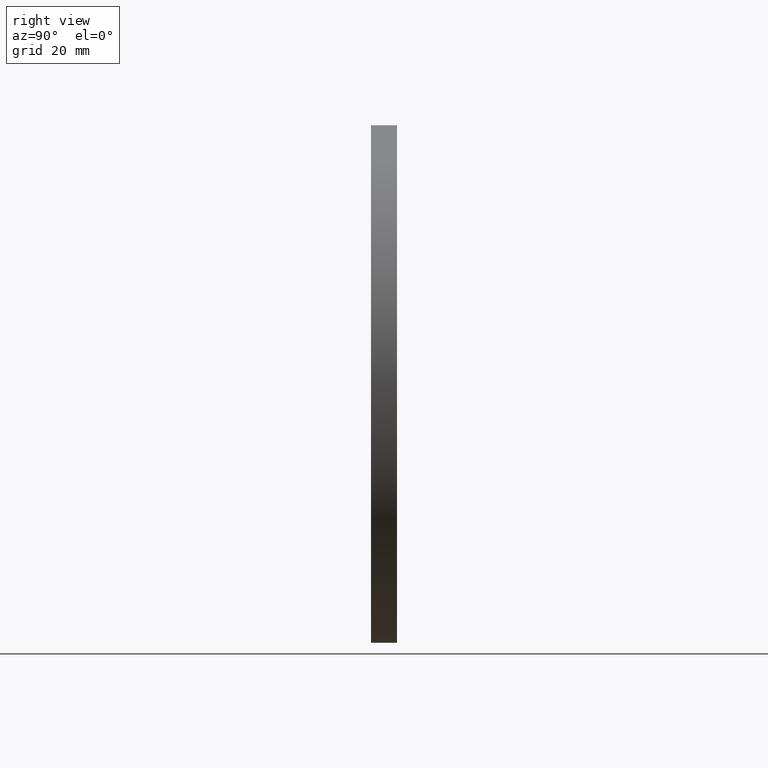
[diagram: clean part render]
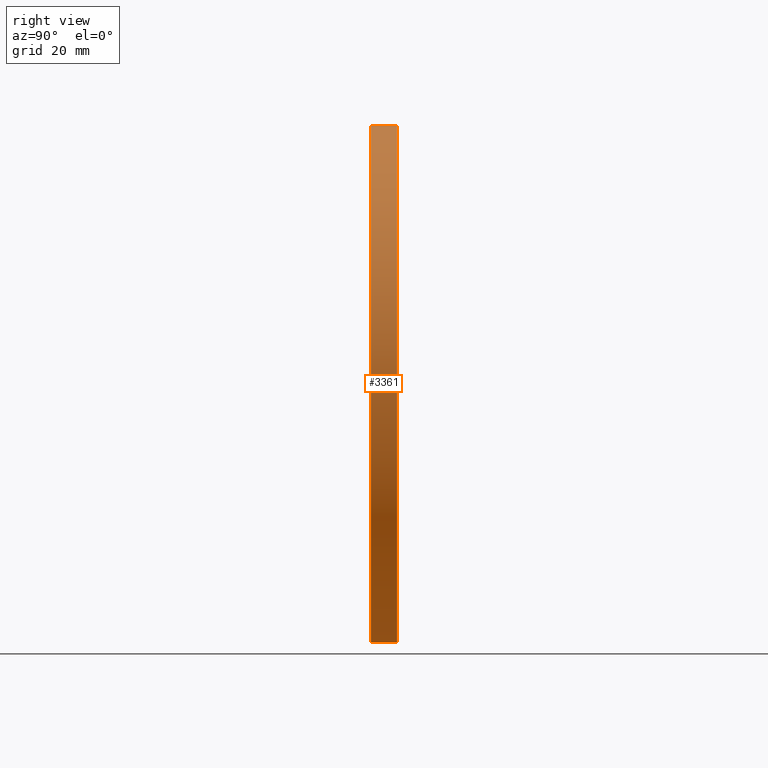
[diagram: same view with one face highlighted and labeled with its STEP entity id]
A machine part, right view. The second image highlights one B-rep face of the part: STEP entity #3361.
In plain terms, the highlighted cylindrical surface (partial cylindrical patch) has radius 60 mm, axis along (-0, -1, -0).
Its self-contained STEP definition (entity closure, byte-faithful):
#1431 = FACE_OUTER_BOUND ( 'NONE', #6976, .T. ) ;
#2302 = CARTESIAN_POINT ( 'NONE',  ( 0.000000000000000000, 6.000000000000000000, -60.00000000000000000 ) ) ;
#2922 = DIRECTION ( 'NONE',  ( 0.000000000000000000, 0.000000000000000000, -1.000000000000000000 ) ) ;
#3123 = LINE ( 'NONE', #2302, #10992 ) ;
#3191 = CARTESIAN_POINT ( 'NONE',  ( 0.000000000000000000, 6.000000000000000000, 0.000000000000000000 ) ) ;
#3279 = EDGE_CURVE ( 'NONE', #3307, #6122, #3678, .T. ) ;
#3307 = VERTEX_POINT ( 'NONE', #6908 ) ;
#3361 = ADVANCED_FACE ( 'NONE', ( #1431 ), #4318, .T. ) ;
#3678 = CIRCLE ( 'NONE', #12442, 60.00000000000000000 ) ;
#3959 = CARTESIAN_POINT ( 'NONE',  ( 0.000000000000000000, 0.000000000000000000, 0.000000000000000000 ) ) ;
#4318 = CYLINDRICAL_SURFACE ( 'NONE', #4347, 60.00000000000000000 ) ;
#4347 = AXIS2_PLACEMENT_3D ( 'NONE', #5028, #6060, #2922 ) ;
#4958 = CARTESIAN_POINT ( 'NONE',  ( 7.347880794884118356E-15, 6.000000000000000000, 60.00000000000000000 ) ) ;
#5020 = CARTESIAN_POINT ( 'NONE',  ( 7.347880794884118356E-15, 6.000000000000000000, 60.00000000000000000 ) ) ;
#5028 = CARTESIAN_POINT ( 'NONE',  ( 0.000000000000000000, 6.000000000000000000, 0.000000000000000000 ) ) ;
#6060 = DIRECTION ( 'NONE',  ( -0.000000000000000000, -1.000000000000000000, -0.000000000000000000 ) ) ;
#6122 = VERTEX_POINT ( 'NONE', #9836 ) ;
#6259 = ORIENTED_EDGE ( 'NONE', *, *, #8759, .F. ) ;
#6908 = CARTESIAN_POINT ( 'NONE',  ( 7.347880794884118356E-15, 0.000000000000000000, 60.00000000000000000 ) ) ;
#6976 = EDGE_LOOP ( 'NONE', ( #6259, #8136, #11607, #11660 ) ) ;
#7047 = DIRECTION ( 'NONE',  ( 0.000000000000000000, 0.000000000000000000, 1.000000000000000000 ) ) ;
#7139 = VECTOR ( 'NONE', #10988, 1000.000000000000000 ) ;
#7310 = DIRECTION ( 'NONE',  ( 0.000000000000000000, 0.000000000000000000, 1.000000000000000000 ) ) ;
#7535 = CARTESIAN_POINT ( 'NONE',  ( 0.000000000000000000, 6.000000000000000000, -60.00000000000000000 ) ) ;
#8136 = ORIENTED_EDGE ( 'NONE', *, *, #9816, .T. ) ;
#8759 = EDGE_CURVE ( 'NONE', #11563, #10392, #9421, .T. ) ;
#9421 = CIRCLE ( 'NONE', #9640, 60.00000000000000000 ) ;
#9522 = DIRECTION ( 'NONE',  ( -0.000000000000000000, -1.000000000000000000, -0.000000000000000000 ) ) ;
#9640 = AXIS2_PLACEMENT_3D ( 'NONE', #3191, #12437, #7310 ) ;
#9816 = EDGE_CURVE ( 'NONE', #11563, #3307, #10215, .T. ) ;
#9836 = CARTESIAN_POINT ( 'NONE',  ( 0.000000000000000000, 0.000000000000000000, -60.00000000000000000 ) ) ;
#9894 = EDGE_CURVE ( 'NONE', #10392, #6122, #3123, .T. ) ;
#10215 = LINE ( 'NONE', #4958, #7139 ) ;
#10392 = VERTEX_POINT ( 'NONE', #7535 ) ;
#10988 = DIRECTION ( 'NONE',  ( -0.000000000000000000, -1.000000000000000000, -0.000000000000000000 ) ) ;
#10992 = VECTOR ( 'NONE', #9522, 1000.000000000000000 ) ;
#11563 = VERTEX_POINT ( 'NONE', #5020 ) ;
#11607 = ORIENTED_EDGE ( 'NONE', *, *, #3279, .T. ) ;
#11660 = ORIENTED_EDGE ( 'NONE', *, *, #9894, .F. ) ;
#12265 = DIRECTION ( 'NONE',  ( 0.000000000000000000, 1.000000000000000000, 0.000000000000000000 ) ) ;
#12437 = DIRECTION ( 'NONE',  ( 0.000000000000000000, 1.000000000000000000, 0.000000000000000000 ) ) ;
#12442 = AXIS2_PLACEMENT_3D ( 'NONE', #3959, #12265, #7047 ) ;